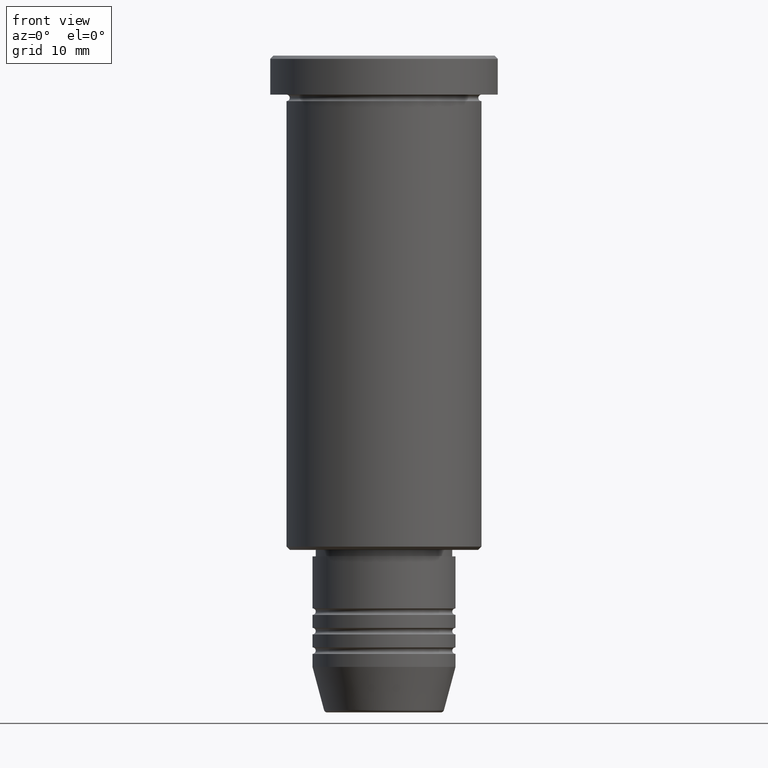
[diagram: clean part render]
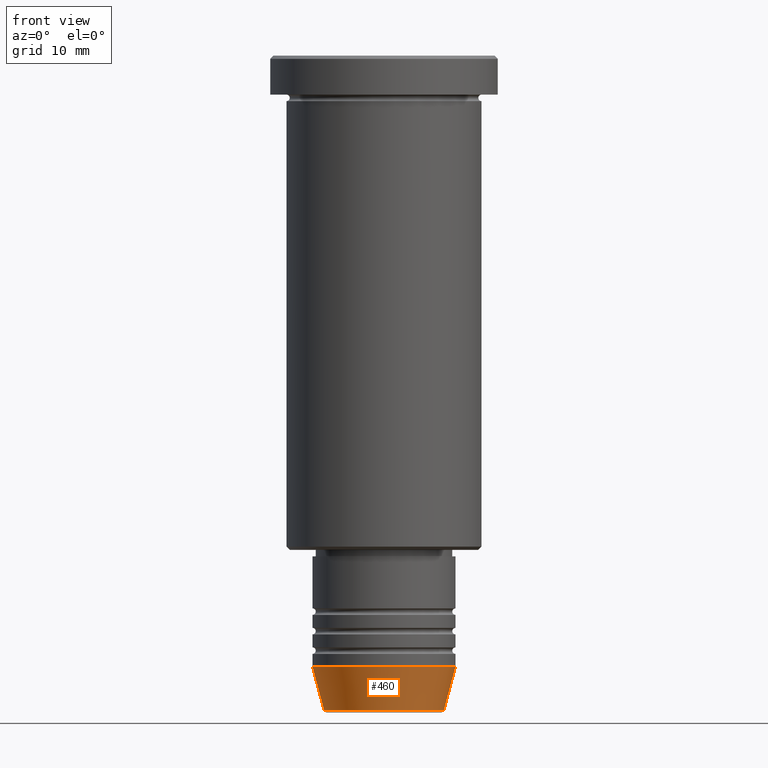
[diagram: same view with one face highlighted and labeled with its STEP entity id]
A machine part, front view. The second image highlights one B-rep face of the part: STEP entity #460.
In plain terms, the highlighted conical surface has half-angle 15 deg.
Its self-contained STEP definition (entity closure, byte-faithful):
#15 = CARTESIAN_POINT ( 'NONE',  ( 9.223655072137187716, 0.000000000000000000, -100.6294095225512564 ) ) ;
#73 = CARTESIAN_POINT ( 'NONE',  ( 11.00000000000000000, 0.000000000000000000, -94.00000000000000000 ) ) ;
#85 = CIRCLE ( 'NONE', #579, 9.223655072137187716 ) ;
#95 = ORIENTED_EDGE ( 'NONE', *, *, #352, .T. ) ;
#220 = EDGE_CURVE ( 'NONE', #1052, #755, #803, .T. ) ;
#231 = CARTESIAN_POINT ( 'NONE',  ( 0.000000000000000000, 0.000000000000000000, -100.6294095225512564 ) ) ;
#333 = CARTESIAN_POINT ( 'NONE',  ( 11.00000000000000000, 0.000000000000000000, -94.00000000000000000 ) ) ;
#342 = CARTESIAN_POINT ( 'NONE',  ( 0.000000000000000000, 0.000000000000000000, -94.00000000000000000 ) ) ;
#352 = EDGE_CURVE ( 'NONE', #855, #755, #414, .T. ) ;
#414 = LINE ( 'NONE', #333, #862 ) ;
#422 = AXIS2_PLACEMENT_3D ( 'NONE', #342, #1074, #838 ) ;
#443 = AXIS2_PLACEMENT_3D ( 'NONE', #840, #1031, #497 ) ;
#447 = CARTESIAN_POINT ( 'NONE',  ( -11.00000000000000000, 1.347111479062088405E-15, -94.00000000000000000 ) ) ;
#449 = ORIENTED_EDGE ( 'NONE', *, *, #955, .F. ) ;
#460 = ADVANCED_FACE ( 'NONE', ( #1166 ), #1174, .T. ) ;
#492 = ORIENTED_EDGE ( 'NONE', *, *, #220, .F. ) ;
#497 = DIRECTION ( 'NONE',  ( 1.000000000000000000, 0.000000000000000000, 0.000000000000000000 ) ) ;
#579 = AXIS2_PLACEMENT_3D ( 'NONE', #231, #592, #874 ) ;
#592 = DIRECTION ( 'NONE',  ( -0.000000000000000000, -0.000000000000000000, 1.000000000000000000 ) ) ;
#614 = VECTOR ( 'NONE', #857, 1000.000000000000000 ) ;
#648 = VERTEX_POINT ( 'NONE', #1133 ) ;
#755 = VERTEX_POINT ( 'NONE', #73 ) ;
#798 = DIRECTION ( 'NONE',  ( 0.2588190451025213501, 0.000000000000000000, 0.9659258262890680902 ) ) ;
#803 = CIRCLE ( 'NONE', #443, 11.00000000000000000 ) ;
#838 = DIRECTION ( 'NONE',  ( 1.000000000000000000, 0.000000000000000000, 0.000000000000000000 ) ) ;
#840 = CARTESIAN_POINT ( 'NONE',  ( 0.000000000000000000, 0.000000000000000000, -94.00000000000000000 ) ) ;
#842 = EDGE_LOOP ( 'NONE', ( #449, #1012, #95, #492 ) ) ;
#855 = VERTEX_POINT ( 'NONE', #15 ) ;
#857 = DIRECTION ( 'NONE',  ( -0.2588190451025213501, 3.169619151431772337E-17, 0.9659258262890680902 ) ) ;
#862 = VECTOR ( 'NONE', #798, 1000.000000000000000 ) ;
#874 = DIRECTION ( 'NONE',  ( 1.000000000000000000, 0.000000000000000000, 0.000000000000000000 ) ) ;
#955 = EDGE_CURVE ( 'NONE', #648, #1052, #1051, .T. ) ;
#961 = CARTESIAN_POINT ( 'NONE',  ( -11.00000000000000000, 1.347111479062088405E-15, -94.00000000000000000 ) ) ;
#1012 = ORIENTED_EDGE ( 'NONE', *, *, #1030, .T. ) ;
#1030 = EDGE_CURVE ( 'NONE', #648, #855, #85, .T. ) ;
#1031 = DIRECTION ( 'NONE',  ( -0.000000000000000000, -0.000000000000000000, 1.000000000000000000 ) ) ;
#1051 = LINE ( 'NONE', #961, #614 ) ;
#1052 = VERTEX_POINT ( 'NONE', #447 ) ;
#1074 = DIRECTION ( 'NONE',  ( -0.000000000000000000, -0.000000000000000000, 1.000000000000000000 ) ) ;
#1133 = CARTESIAN_POINT ( 'NONE',  ( -9.223655072137187716, 1.238341722557647004E-15, -100.6294095225512564 ) ) ;
#1166 = FACE_OUTER_BOUND ( 'NONE', #842, .T. ) ;
#1174 = CONICAL_SURFACE ( 'NONE', #422, 11.00000000000000000, 0.2617993877991500740 ) ;